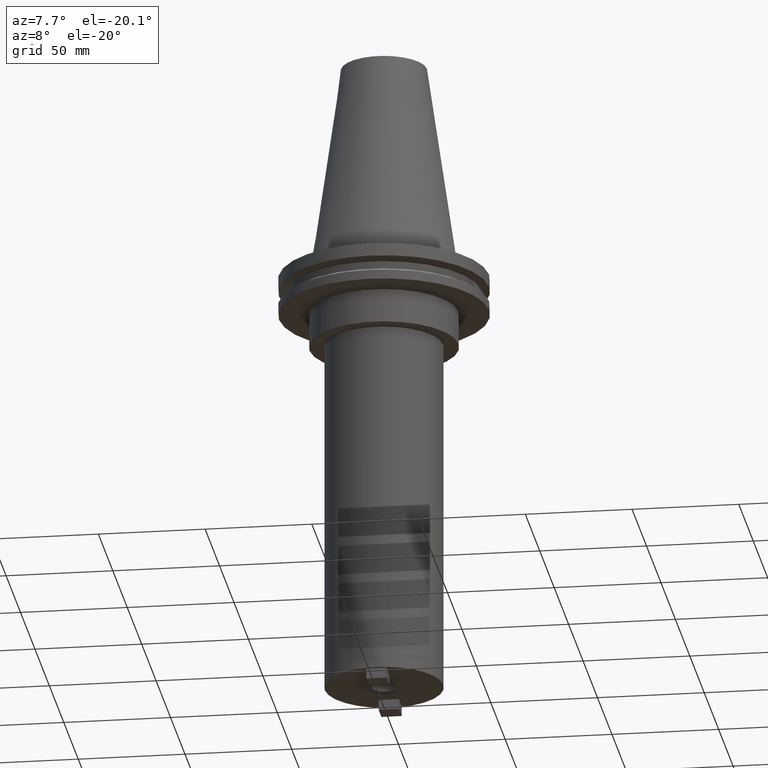
[diagram: clean part render]
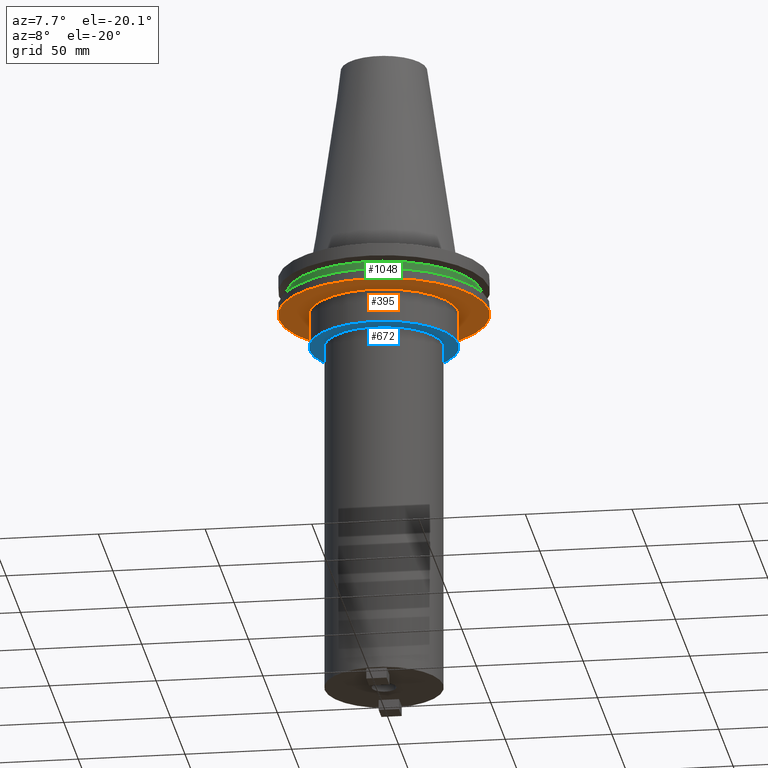
[diagram: same view with three faces highlighted in distinct colors, each labeled with its STEP entity id]
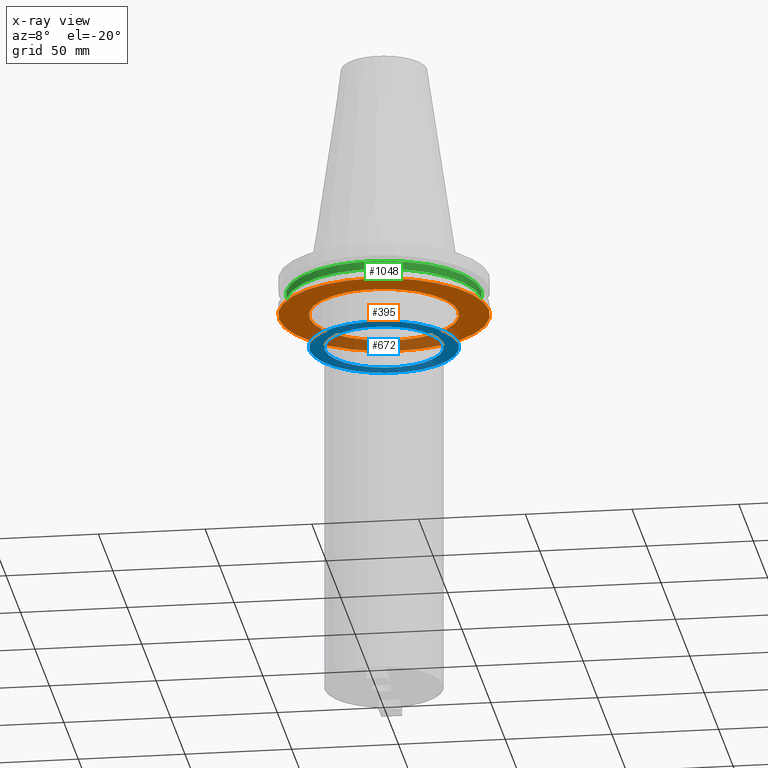
[diagram: x-ray of the same camera — body ghosted, the three highlighted faces saturated]
A machine part, auxiliary view with three faces highlighted in distinct colors.
The next image is the same camera in x-ray (body ghosted, the three faces saturated) — at least one of them is partly hidden behind the body in this view.
Their STEP definitions:

[orange] entity #395 — the highlighted planar face has unit normal (0, -0, 1).
#1 = CIRCLE ( 'NONE', #856, 34.92499999999999716 ) ;
#14 = CIRCLE ( 'NONE', #117, 49.21499999999998920 ) ;
#47 = PLANE ( 'NONE',  #806 ) ;
#49 = VERTEX_POINT ( 'NONE', #481 ) ;
#54 = VERTEX_POINT ( 'NONE', #889 ) ;
#72 = CARTESIAN_POINT ( 'NONE',  ( 0.000000000000000000, 0.000000000000000000, -19.04999999999999716 ) ) ;
#116 = ORIENTED_EDGE ( 'NONE', *, *, #523, .T. ) ;
#117 = AXIS2_PLACEMENT_3D ( 'NONE', #485, #646, #816 ) ;
#162 = EDGE_LOOP ( 'NONE', ( #335, #116 ) ) ;
#170 = CARTESIAN_POINT ( 'NONE',  ( 0.000000000000000000, 0.000000000000000000, -19.04999999999999716 ) ) ;
#236 = VERTEX_POINT ( 'NONE', #832 ) ;
#260 = DIRECTION ( 'NONE',  ( -0.000000000000000000, -0.000000000000000000, 1.000000000000000000 ) ) ;
#335 = ORIENTED_EDGE ( 'NONE', *, *, #1015, .T. ) ;
#374 = DIRECTION ( 'NONE',  ( 1.000000000000000000, 0.000000000000000000, 0.000000000000000000 ) ) ;
#379 = DIRECTION ( 'NONE',  ( 0.000000000000000000, -0.000000000000000000, 1.000000000000000000 ) ) ;
#395 = ADVANCED_FACE ( 'NONE', ( #781, #623 ), #47, .F. ) ;
#414 = DIRECTION ( 'NONE',  ( 1.000000000000000000, 0.000000000000000000, 0.000000000000000000 ) ) ;
#466 = VERTEX_POINT ( 'NONE', #716 ) ;
#481 = CARTESIAN_POINT ( 'NONE',  ( -34.92499999999999716, 4.277078946022130887E-15, -19.04999999999999716 ) ) ;
#485 = CARTESIAN_POINT ( 'NONE',  ( 0.000000000000000000, 0.000000000000000000, -19.04999999999999716 ) ) ;
#523 = EDGE_CURVE ( 'NONE', #49, #54, #1, .T. ) ;
#590 = ORIENTED_EDGE ( 'NONE', *, *, #628, .F. ) ;
#609 = AXIS2_PLACEMENT_3D ( 'NONE', #72, #260, #414 ) ;
#623 = FACE_BOUND ( 'NONE', #162, .T. ) ;
#628 = EDGE_CURVE ( 'NONE', #236, #466, #760, .T. ) ;
#646 = DIRECTION ( 'NONE',  ( -0.000000000000000000, -0.000000000000000000, 1.000000000000000000 ) ) ;
#652 = DIRECTION ( 'NONE',  ( -0.000000000000000000, -0.000000000000000000, 1.000000000000000000 ) ) ;
#711 = CARTESIAN_POINT ( 'NONE',  ( 0.000000000000000000, 49.21499999999998920, -19.04999999999999716 ) ) ;
#716 = CARTESIAN_POINT ( 'NONE',  ( 49.21499999999998920, 0.000000000000000000, -19.04999999999999716 ) ) ;
#760 = CIRCLE ( 'NONE', #1042, 49.21499999999998920 ) ;
#781 = FACE_OUTER_BOUND ( 'NONE', #882, .T. ) ;
#806 = AXIS2_PLACEMENT_3D ( 'NONE', #711, #379, #374 ) ;
#816 = DIRECTION ( 'NONE',  ( 1.000000000000000000, 0.000000000000000000, 0.000000000000000000 ) ) ;
#817 = CARTESIAN_POINT ( 'NONE',  ( 0.000000000000000000, 0.000000000000000000, -19.04999999999999716 ) ) ;
#824 = DIRECTION ( 'NONE',  ( 1.000000000000000000, 0.000000000000000000, 0.000000000000000000 ) ) ;
#832 = CARTESIAN_POINT ( 'NONE',  ( -49.21499999999998920, 6.027099222003697037E-15, -19.04999999999999716 ) ) ;
#856 = AXIS2_PLACEMENT_3D ( 'NONE', #170, #652, #824 ) ;
#882 = EDGE_LOOP ( 'NONE', ( #992, #590 ) ) ;
#889 = CARTESIAN_POINT ( 'NONE',  ( 34.92499999999999716, 0.000000000000000000, -19.04999999999999716 ) ) ;
#914 = DIRECTION ( 'NONE',  ( 1.000000000000000000, 0.000000000000000000, 0.000000000000000000 ) ) ;
#972 = EDGE_CURVE ( 'NONE', #466, #236, #14, .T. ) ;
#992 = ORIENTED_EDGE ( 'NONE', *, *, #972, .F. ) ;
#999 = DIRECTION ( 'NONE',  ( -0.000000000000000000, -0.000000000000000000, 1.000000000000000000 ) ) ;
#1015 = EDGE_CURVE ( 'NONE', #54, #49, #1083, .T. ) ;
#1042 = AXIS2_PLACEMENT_3D ( 'NONE', #817, #999, #914 ) ;
#1083 = CIRCLE ( 'NONE', #609, 34.92499999999999716 ) ;

[blue] entity #672 — the highlighted planar face has unit normal (0, -0, 1).
#22 = ORIENTED_EDGE ( 'NONE', *, *, #368, .F. ) ;
#30 = ORIENTED_EDGE ( 'NONE', *, *, #281, .F. ) ;
#41 = CARTESIAN_POINT ( 'NONE',  ( 27.80030000000000001, 0.000000000000000000, -35.04999999999999716 ) ) ;
#42 = CARTESIAN_POINT ( 'NONE',  ( 0.000000000000000000, 0.000000000000000000, -35.04999999999999716 ) ) ;
#69 = CARTESIAN_POINT ( 'NONE',  ( 0.000000000000000000, 0.000000000000000000, -35.04999999999999716 ) ) ;
#73 = CIRCLE ( 'NONE', #375, 34.92499999999999716 ) ;
#98 = AXIS2_PLACEMENT_3D ( 'NONE', #534, #784, #846 ) ;
#124 = ORIENTED_EDGE ( 'NONE', *, *, #1061, .F. ) ;
#127 = DIRECTION ( 'NONE',  ( 0.000000000000000000, 0.000000000000000000, -1.000000000000000000 ) ) ;
#141 = DIRECTION ( 'NONE',  ( 1.000000000000000000, 0.000000000000000000, 0.000000000000000000 ) ) ;
#186 = CARTESIAN_POINT ( 'NONE',  ( 0.000000000000000000, 0.000000000000000000, -35.04999999999999716 ) ) ;
#209 = CARTESIAN_POINT ( 'NONE',  ( 34.92499999999999716, 0.000000000000000000, -35.04999999999999716 ) ) ;
#237 = DIRECTION ( 'NONE',  ( 1.000000000000000000, 0.000000000000000000, 0.000000000000000000 ) ) ;
#281 = EDGE_CURVE ( 'NONE', #901, #449, #73, .T. ) ;
#285 = ORIENTED_EDGE ( 'NONE', *, *, #641, .F. ) ;
#318 = CARTESIAN_POINT ( 'NONE',  ( 0.000000000000000000, 0.000000000000000000, -35.04999999999999716 ) ) ;
#361 = PLANE ( 'NONE',  #98 ) ;
#368 = EDGE_CURVE ( 'NONE', #793, #650, #622, .T. ) ;
#375 = AXIS2_PLACEMENT_3D ( 'NONE', #186, #927, #617 ) ;
#389 = CARTESIAN_POINT ( 'NONE',  ( -34.92499999999999716, 4.277078946022130887E-15, -35.04999999999999716 ) ) ;
#406 = DIRECTION ( 'NONE',  ( 0.000000000000000000, 0.000000000000000000, -1.000000000000000000 ) ) ;
#424 = EDGE_LOOP ( 'NONE', ( #124, #30 ) ) ;
#433 = AXIS2_PLACEMENT_3D ( 'NONE', #318, #656, #237 ) ;
#449 = VERTEX_POINT ( 'NONE', #209 ) ;
#451 = AXIS2_PLACEMENT_3D ( 'NONE', #69, #406, #500 ) ;
#500 = DIRECTION ( 'NONE',  ( 1.000000000000000000, 0.000000000000000000, 0.000000000000000000 ) ) ;
#534 = CARTESIAN_POINT ( 'NONE',  ( 0.000000000000000000, 34.92499999999999716, -35.04999999999999716 ) ) ;
#561 = CIRCLE ( 'NONE', #451, 27.80030000000000001 ) ;
#617 = DIRECTION ( 'NONE',  ( 1.000000000000000000, 0.000000000000000000, 0.000000000000000000 ) ) ;
#622 = CIRCLE ( 'NONE', #755, 27.80030000000000001 ) ;
#641 = EDGE_CURVE ( 'NONE', #650, #793, #561, .T. ) ;
#650 = VERTEX_POINT ( 'NONE', #988 ) ;
#656 = DIRECTION ( 'NONE',  ( -0.000000000000000000, -0.000000000000000000, 1.000000000000000000 ) ) ;
#672 = ADVANCED_FACE ( 'NONE', ( #1038, #950 ), #361, .F. ) ;
#755 = AXIS2_PLACEMENT_3D ( 'NONE', #42, #127, #141 ) ;
#784 = DIRECTION ( 'NONE',  ( 0.000000000000000000, -0.000000000000000000, 1.000000000000000000 ) ) ;
#788 = EDGE_LOOP ( 'NONE', ( #22, #285 ) ) ;
#793 = VERTEX_POINT ( 'NONE', #41 ) ;
#846 = DIRECTION ( 'NONE',  ( 1.000000000000000000, 0.000000000000000000, 0.000000000000000000 ) ) ;
#901 = VERTEX_POINT ( 'NONE', #389 ) ;
#927 = DIRECTION ( 'NONE',  ( -0.000000000000000000, -0.000000000000000000, 1.000000000000000000 ) ) ;
#950 = FACE_BOUND ( 'NONE', #788, .T. ) ;
#988 = CARTESIAN_POINT ( 'NONE',  ( -27.80030000000000001, 3.404554841033616429E-15, -35.04999999999999716 ) ) ;
#1025 = CIRCLE ( 'NONE', #433, 34.92499999999999716 ) ;
#1038 = FACE_OUTER_BOUND ( 'NONE', #424, .T. ) ;
#1061 = EDGE_CURVE ( 'NONE', #449, #901, #1025, .T. ) ;

[green] entity #1048 — the highlighted cylindrical surface (partial cylindrical patch) has radius 45.645 mm, axis along (-0, -0, 1).
#4 = ORIENTED_EDGE ( 'NONE', *, *, #984, .T. ) ;
#11 = DIRECTION ( 'NONE',  ( 1.000000000000000000, 0.000000000000000000, 0.000000000000000000 ) ) ;
#161 = CARTESIAN_POINT ( 'NONE',  ( -45.64500000000000313, 5.589900314708094957E-15, -9.204999999999991189 ) ) ;
#168 = DIRECTION ( 'NONE',  ( 1.000000000000000000, 0.000000000000000000, 0.000000000000000000 ) ) ;
#242 = VERTEX_POINT ( 'NONE', #161 ) ;
#254 = DIRECTION ( 'NONE',  ( -0.000000000000000000, -0.000000000000000000, 1.000000000000000000 ) ) ;
#303 = CARTESIAN_POINT ( 'NONE',  ( -45.64500000000000313, 5.589900314708094957E-15, -13.05499999999999794 ) ) ;
#342 = DIRECTION ( 'NONE',  ( -0.000000000000000000, -0.000000000000000000, 1.000000000000000000 ) ) ;
#344 = CIRCLE ( 'NONE', #580, 45.64500000000000313 ) ;
#360 = ORIENTED_EDGE ( 'NONE', *, *, #866, .F. ) ;
#378 = CARTESIAN_POINT ( 'NONE',  ( 45.64500000000000313, 0.000000000000000000, 101.5999999999999943 ) ) ;
#409 = CARTESIAN_POINT ( 'NONE',  ( 0.000000000000000000, 0.000000000000000000, -13.05499999999999794 ) ) ;
#425 = CARTESIAN_POINT ( 'NONE',  ( 0.000000000000000000, 0.000000000000000000, 101.5999999999999943 ) ) ;
#437 = VERTEX_POINT ( 'NONE', #303 ) ;
#456 = DIRECTION ( 'NONE',  ( -0.000000000000000000, -0.000000000000000000, 1.000000000000000000 ) ) ;
#467 = DIRECTION ( 'NONE',  ( -0.000000000000000000, -0.000000000000000000, 1.000000000000000000 ) ) ;
#488 = ORIENTED_EDGE ( 'NONE', *, *, #688, .T. ) ;
#506 = LINE ( 'NONE', #378, #659 ) ;
#515 = EDGE_LOOP ( 'NONE', ( #360, #4, #488, #567 ) ) ;
#567 = ORIENTED_EDGE ( 'NONE', *, *, #1071, .F. ) ;
#580 = AXIS2_PLACEMENT_3D ( 'NONE', #834, #997, #168 ) ;
#614 = CARTESIAN_POINT ( 'NONE',  ( 45.64500000000000313, 0.000000000000000000, -13.05499999999999794 ) ) ;
#626 = AXIS2_PLACEMENT_3D ( 'NONE', #409, #254, #11 ) ;
#659 = VECTOR ( 'NONE', #456, 1000.000000000000000 ) ;
#688 = EDGE_CURVE ( 'NONE', #728, #986, #506, .T. ) ;
#728 = VERTEX_POINT ( 'NONE', #614 ) ;
#805 = LINE ( 'NONE', #976, #904 ) ;
#834 = CARTESIAN_POINT ( 'NONE',  ( 0.000000000000000000, 0.000000000000000000, -9.204999999999991189 ) ) ;
#840 = FACE_OUTER_BOUND ( 'NONE', #515, .T. ) ;
#845 = CYLINDRICAL_SURFACE ( 'NONE', #886, 45.64500000000000313 ) ;
#849 = CARTESIAN_POINT ( 'NONE',  ( 45.64500000000000313, 0.000000000000000000, -9.204999999999991189 ) ) ;
#866 = EDGE_CURVE ( 'NONE', #437, #242, #805, .T. ) ;
#886 = AXIS2_PLACEMENT_3D ( 'NONE', #425, #342, #1075 ) ;
#904 = VECTOR ( 'NONE', #467, 1000.000000000000000 ) ;
#976 = CARTESIAN_POINT ( 'NONE',  ( -45.64500000000000313, 5.589900314708094957E-15, 101.5999999999999943 ) ) ;
#984 = EDGE_CURVE ( 'NONE', #437, #728, #1065, .T. ) ;
#986 = VERTEX_POINT ( 'NONE', #849 ) ;
#997 = DIRECTION ( 'NONE',  ( -0.000000000000000000, -0.000000000000000000, 1.000000000000000000 ) ) ;
#1048 = ADVANCED_FACE ( 'NONE', ( #840 ), #845, .T. ) ;
#1065 = CIRCLE ( 'NONE', #626, 45.64500000000000313 ) ;
#1071 = EDGE_CURVE ( 'NONE', #242, #986, #344, .T. ) ;
#1075 = DIRECTION ( 'NONE',  ( 1.000000000000000000, 0.000000000000000000, 0.000000000000000000 ) ) ;